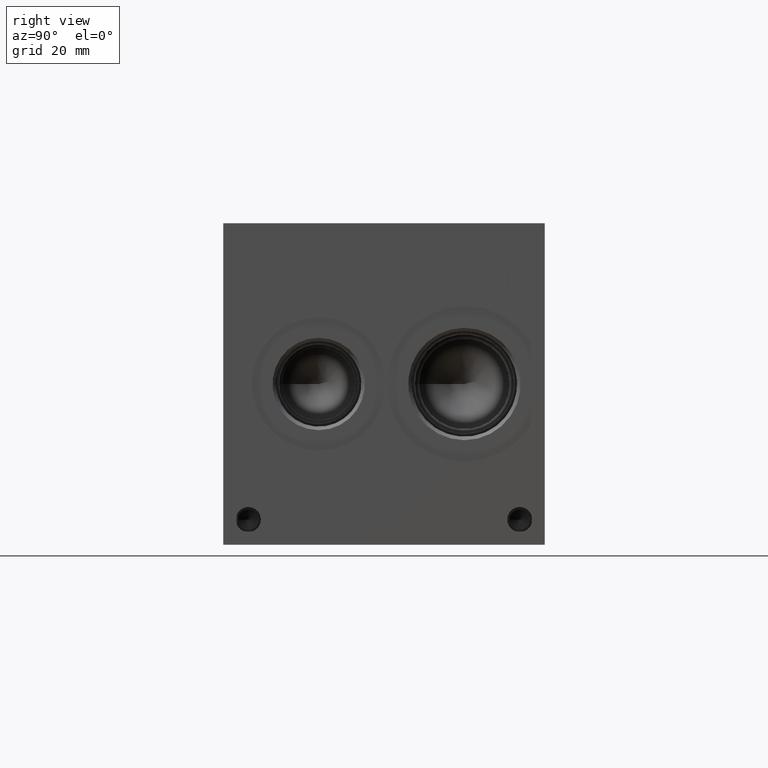
[diagram: clean part render]
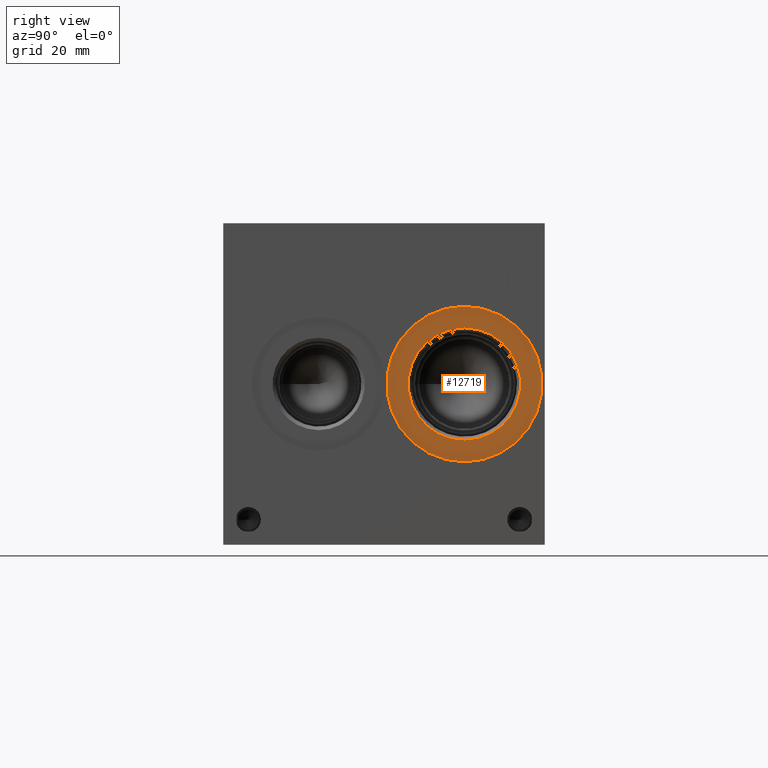
[diagram: same view with one face highlighted and labeled with its STEP entity id]
A machine part, right view. The second image highlights one B-rep face of the part: STEP entity #12719.
In plain terms, the highlighted planar face has unit normal (-1, 0, 0).
Its self-contained STEP definition (entity closure, byte-faithful):
#232=CIRCLE('',#13324,24.5618);
#233=CIRCLE('',#13325,24.5618);
#234=CIRCLE('',#13327,17.7546);
#235=CIRCLE('',#13328,17.7546);
#972=FACE_BOUND('',#2268,.T.);
#1539=FACE_OUTER_BOUND('',#2267,.T.);
#2267=EDGE_LOOP('',(#10648,#10649));
#2268=EDGE_LOOP('',(#10650,#10651));
#5772=VERTEX_POINT('',#21404);
#5773=VERTEX_POINT('',#21406);
#5774=VERTEX_POINT('',#21410);
#5775=VERTEX_POINT('',#21411);
#7466=EDGE_CURVE('',#5772,#5773,#232,.T.);
#7467=EDGE_CURVE('',#5773,#5772,#233,.T.);
#7468=EDGE_CURVE('',#5774,#5775,#234,.T.);
#7469=EDGE_CURVE('',#5775,#5774,#235,.T.);
#10648=ORIENTED_EDGE('',*,*,#7467,.F.);
#10649=ORIENTED_EDGE('',*,*,#7466,.F.);
#10650=ORIENTED_EDGE('',*,*,#7468,.T.);
#10651=ORIENTED_EDGE('',*,*,#7469,.T.);
#11691=PLANE('',#13326);
#12719=ADVANCED_FACE('',(#1539,#972),#11691,.F.);
#13324=AXIS2_PLACEMENT_3D('',#21407,#15655,#15656);
#13325=AXIS2_PLACEMENT_3D('',#21408,#15657,#15658);
#13326=AXIS2_PLACEMENT_3D('',#21409,#15659,#15660);
#13327=AXIS2_PLACEMENT_3D('',#21412,#15661,#15662);
#13328=AXIS2_PLACEMENT_3D('',#21413,#15663,#15664);
#15655=DIRECTION('center_axis',(-1.,0.,0.));
#15656=DIRECTION('ref_axis',(0.,0.,1.));
#15657=DIRECTION('center_axis',(-1.,0.,0.));
#15658=DIRECTION('ref_axis',(0.,0.,1.));
#15659=DIRECTION('center_axis',(-1.,0.,0.));
#15660=DIRECTION('ref_axis',(0.,0.,1.));
#15661=DIRECTION('center_axis',(-1.,0.,0.));
#15662=DIRECTION('ref_axis',(0.,0.,1.));
#15663=DIRECTION('center_axis',(-1.,0.,0.));
#15664=DIRECTION('ref_axis',(0.,0.,1.));
#21404=CARTESIAN_POINT('',(180.1876,76.2,75.3618));
#21406=CARTESIAN_POINT('',(180.1876,76.2,26.2382));
#21407=CARTESIAN_POINT('Origin',(180.1876,76.2,50.8));
#21408=CARTESIAN_POINT('Origin',(180.1876,76.2,50.8));
#21409=CARTESIAN_POINT('Origin',(180.1876,76.2,33.0454));
#21410=CARTESIAN_POINT('',(180.1876,76.2,33.0454));
#21411=CARTESIAN_POINT('',(180.1876,76.2,68.5546));
#21412=CARTESIAN_POINT('Origin',(180.1876,76.2,50.8));
#21413=CARTESIAN_POINT('Origin',(180.1876,76.2,50.8));